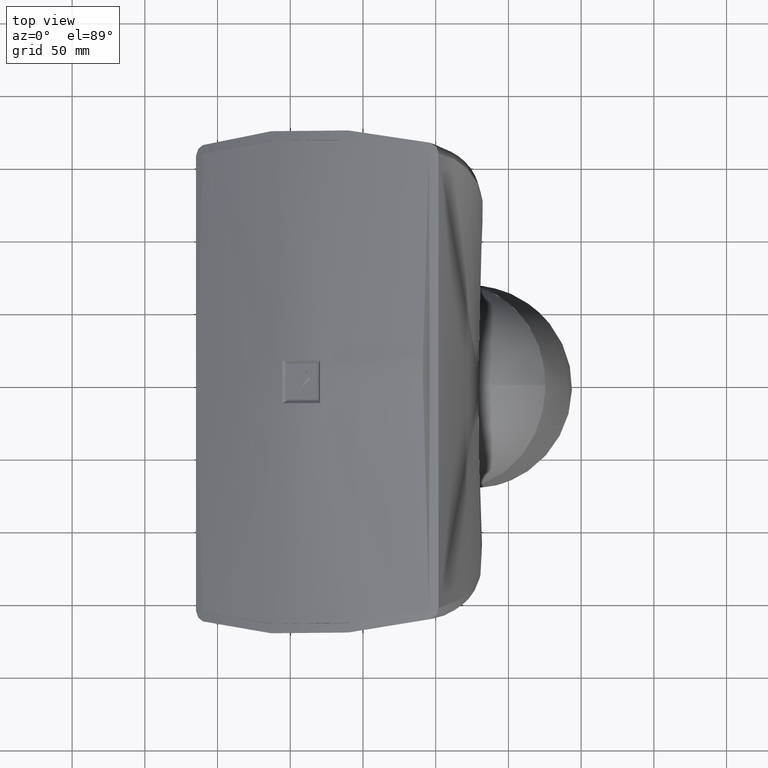
[diagram: clean part render]
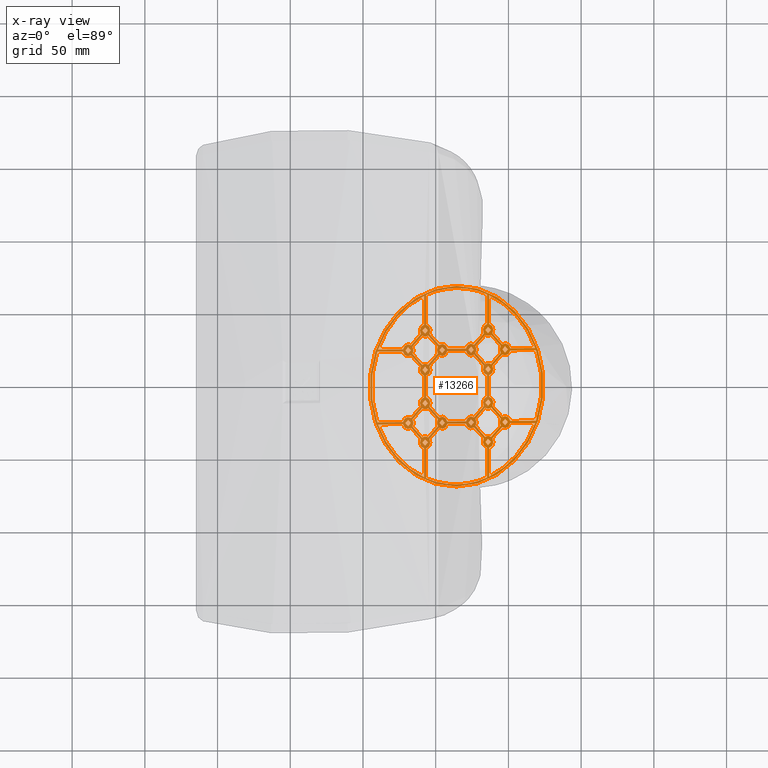
[diagram: x-ray — body ghosted, one internal face saturated and labeled with its STEP entity id]
A machine part, top view, then the same camera in x-ray: the body is ghosted and one INTERNAL B-rep face — a face not visible from any outside direction — is saturated and labeled: STEP entity #13266.
In plain terms, the highlighted planar face has unit normal (0.5, 0, -0.866).
Its self-contained STEP definition (entity closure, byte-faithful):
#1002=FACE_BOUND('',#4945,.T.);
#1003=FACE_BOUND('',#4946,.T.);
#1004=FACE_BOUND('',#4947,.T.);
#1005=FACE_BOUND('',#4948,.T.);
#1006=FACE_BOUND('',#4949,.T.);
#1007=FACE_BOUND('',#4950,.T.);
#1008=FACE_BOUND('',#4951,.T.);
#1009=FACE_BOUND('',#4952,.T.);
#1010=FACE_BOUND('',#4953,.T.);
#1011=FACE_BOUND('',#4954,.T.);
#1012=FACE_BOUND('',#4955,.T.);
#1013=FACE_BOUND('',#4956,.T.);
#1014=FACE_BOUND('',#4957,.T.);
#1015=FACE_BOUND('',#4958,.T.);
#1016=FACE_BOUND('',#4959,.T.);
#1017=FACE_BOUND('',#4960,.T.);
#1018=FACE_BOUND('',#4961,.T.);
#1019=FACE_BOUND('',#4962,.T.);
#1020=FACE_BOUND('',#4963,.T.);
#1021=FACE_BOUND('',#4964,.T.);
#1022=FACE_BOUND('',#4965,.T.);
#1023=FACE_BOUND('',#4966,.T.);
#1024=FACE_BOUND('',#4967,.T.);
#1025=FACE_BOUND('',#4968,.T.);
#1026=FACE_BOUND('',#4969,.T.);
#1027=FACE_BOUND('',#4970,.T.);
#1028=FACE_BOUND('',#4971,.T.);
#1029=FACE_BOUND('',#4972,.T.);
#1030=FACE_BOUND('',#4973,.T.);
#2217=LINE('',#29278,#3303);
#2218=LINE('',#29287,#3304);
#2219=LINE('',#29295,#3305);
#2220=LINE('',#29303,#3306);
#2239=LINE('',#29643,#3325);
#2240=LINE('',#29650,#3326);
#2241=LINE('',#29656,#3327);
#2242=LINE('',#29662,#3328);
#2243=LINE('',#29668,#3329);
#2245=LINE('',#29677,#3331);
#2246=LINE('',#29683,#3332);
#2248=LINE('',#29692,#3334);
#2249=LINE('',#29698,#3335);
#2251=LINE('',#29707,#3337);
#2253=LINE('',#29716,#3339);
#2255=LINE('',#29725,#3341);
#2256=LINE('',#29731,#3342);
#2258=LINE('',#29740,#3344);
#2260=LINE('',#29751,#3346);
#2261=LINE('',#29757,#3347);
#2262=LINE('',#29779,#3348);
#2264=LINE('',#29786,#3350);
#2266=LINE('',#29804,#3352);
#2267=LINE('',#29820,#3353);
#2269=LINE('',#29829,#3355);
#2271=LINE('',#29838,#3357);
#2273=LINE('',#29847,#3359);
#2275=LINE('',#29856,#3361);
#2277=LINE('',#29865,#3363);
#2279=LINE('',#29874,#3365);
#2281=LINE('',#29883,#3367);
#2283=LINE('',#29892,#3369);
#2285=LINE('',#29901,#3371);
#2287=LINE('',#29910,#3373);
#2289=LINE('',#29919,#3375);
#2291=LINE('',#29941,#3377);
#2292=LINE('',#29956,#3378);
#2294=LINE('',#29962,#3380);
#2296=LINE('',#29985,#3382);
#2298=LINE('',#29993,#3384);
#2300=LINE('',#30006,#3386);
#2302=LINE('',#30012,#3388);
#2304=LINE('',#30021,#3390);
#2307=LINE('',#30030,#3393);
#2308=LINE('',#30036,#3394);
#2310=LINE('',#30045,#3396);
#2311=LINE('',#30051,#3397);
#2312=LINE('',#30057,#3398);
#2314=LINE('',#30066,#3400);
#2315=LINE('',#30072,#3401);
#2317=LINE('',#30081,#3403);
#2319=LINE('',#30090,#3405);
#2321=LINE('',#30099,#3407);
#2322=LINE('',#30105,#3408);
#2323=LINE('',#30111,#3409);
#2327=LINE('',#30120,#3413);
#3303=VECTOR('',#16614,10.);
#3304=VECTOR('',#16627,10.);
#3305=VECTOR('',#16638,10.);
#3306=VECTOR('',#16649,10.);
#3325=VECTOR('',#16734,10.);
#3326=VECTOR('',#16743,10.);
#3327=VECTOR('',#16750,10.);
#3328=VECTOR('',#16757,10.);
#3329=VECTOR('',#16764,10.);
#3331=VECTOR('',#16772,10.);
#3332=VECTOR('',#16779,10.);
#3334=VECTOR('',#16787,10.);
#3335=VECTOR('',#16794,10.);
#3337=VECTOR('',#16802,9.99999999999999);
#3339=VECTOR('',#16810,10.);
#3341=VECTOR('',#16818,10.);
#3342=VECTOR('',#16825,10.);
#3344=VECTOR('',#16833,10.);
#3346=VECTOR('',#16839,10.);
#3347=VECTOR('',#16846,10.);
#3348=VECTOR('',#16849,10.);
#3350=VECTOR('',#16857,10.);
#3352=VECTOR('',#16863,10.);
#3353=VECTOR('',#16866,10.);
#3355=VECTOR('',#16874,10.);
#3357=VECTOR('',#16882,10.);
#3359=VECTOR('',#16890,10.);
#3361=VECTOR('',#16898,10.);
#3363=VECTOR('',#16906,10.);
#3365=VECTOR('',#16914,10.);
#3367=VECTOR('',#16922,10.);
#3369=VECTOR('',#16930,10.);
#3371=VECTOR('',#16938,10.);
#3373=VECTOR('',#16946,10.);
#3375=VECTOR('',#16954,10.);
#3377=VECTOR('',#16962,10.);
#3378=VECTOR('',#16965,10.);
#3380=VECTOR('',#16971,10.);
#3382=VECTOR('',#16979,10.);
#3384=VECTOR('',#16985,10.);
#3386=VECTOR('',#16989,10.);
#3388=VECTOR('',#16995,10.);
#3390=VECTOR('',#17003,10.);
#3393=VECTOR('',#17010,10.);
#3394=VECTOR('',#17017,10.);
#3396=VECTOR('',#17025,10.);
#3397=VECTOR('',#17032,10.);
#3398=VECTOR('',#17039,10.);
#3400=VECTOR('',#17047,10.);
#3401=VECTOR('',#17054,10.);
#3403=VECTOR('',#17062,10.);
#3405=VECTOR('',#17070,10.);
#3407=VECTOR('',#17078,10.);
#3408=VECTOR('',#17085,10.);
#3409=VECTOR('',#17092,10.);
#3413=VECTOR('',#17098,10.);
#4129=FACE_OUTER_BOUND('',#4944,.T.);
#4944=EDGE_LOOP('',(#11929));
#4945=EDGE_LOOP('',(#11930,#11931,#11932,#11933,#11934,#11935,#11936,#11937,
#11938,#11939));
#4946=EDGE_LOOP('',(#11940,#11941,#11942,#11943,#11944,#11945,#11946,#11947,
#11948,#11949,#11950,#11951,#11952,#11953,#11954,#11955));
#4947=EDGE_LOOP('',(#11956,#11957,#11958,#11959,#11960,#11961));
#4948=EDGE_LOOP('',(#11962,#11963,#11964,#11965,#11966,#11967));
#4949=EDGE_LOOP('',(#11968,#11969,#11970,#11971,#11972,#11973,#11974,#11975));
#4950=EDGE_LOOP('',(#11976,#11977,#11978,#11979,#11980,#11981,#11982,#11983));
#4951=EDGE_LOOP('',(#11984));
#4952=EDGE_LOOP('',(#11985,#11986,#11987,#11988,#11989,#11990,#11991,#11992));
#4953=EDGE_LOOP('',(#11993,#11994,#11995,#11996,#11997,#11998,#11999,#12000,
#12001,#12002));
#4954=EDGE_LOOP('',(#12003,#12004,#12005,#12006,#12007,#12008,#12009,#12010,
#12011,#12012,#12013));
#4955=EDGE_LOOP('',(#12014));
#4956=EDGE_LOOP('',(#12015));
#4957=EDGE_LOOP('',(#12016));
#4958=EDGE_LOOP('',(#12017));
#4959=EDGE_LOOP('',(#12018));
#4960=EDGE_LOOP('',(#12019,#12020,#12021,#12022,#12023,#12024));
#4961=EDGE_LOOP('',(#12025,#12026,#12027,#12028,#12029,#12030,#12031,#12032,
#12033,#12034,#12035));
#4962=EDGE_LOOP('',(#12036));
#4963=EDGE_LOOP('',(#12037));
#4964=EDGE_LOOP('',(#12038));
#4965=EDGE_LOOP('',(#12039));
#4966=EDGE_LOOP('',(#12040));
#4967=EDGE_LOOP('',(#12041));
#4968=EDGE_LOOP('',(#12042));
#4969=EDGE_LOOP('',(#12043));
#4970=EDGE_LOOP('',(#12044));
#4971=EDGE_LOOP('',(#12045,#12046,#12047,#12048,#12049,#12050,#12051,#12052));
#4972=EDGE_LOOP('',(#12053));
#4973=EDGE_LOOP('',(#12054,#12055,#12056,#12057,#12058,#12059));
#5090=CIRCLE('',#13829,69.);
#5128=CIRCLE('',#14018,4.15);
#5129=CIRCLE('',#14023,4.15);
#5130=CIRCLE('',#14028,4.15);
#5131=CIRCLE('',#14033,4.15);
#5142=CIRCLE('',#14055,67.5);
#5144=CIRCLE('',#14204,4.15);
#5145=CIRCLE('',#14207,4.15);
#5146=CIRCLE('',#14210,4.15);
#5147=CIRCLE('',#14212,4.15);
#5148=CIRCLE('',#14216,4.15);
#5149=CIRCLE('',#14219,4.15);
#5150=CIRCLE('',#14221,4.15);
#5151=CIRCLE('',#14224,4.15);
#5152=CIRCLE('',#14228,4.15);
#5153=CIRCLE('',#14230,4.15);
#5154=CIRCLE('',#14233,67.5);
#5157=CIRCLE('',#14237,67.5);
#5158=CIRCLE('',#14239,67.5);
#5160=CIRCLE('',#14242,67.5);
#5161=CIRCLE('',#14244,4.15);
#5162=CIRCLE('',#14247,4.15);
#5163=CIRCLE('',#14250,4.15);
#5164=CIRCLE('',#14252,4.15);
#5165=CIRCLE('',#14256,4.15);
#5166=CIRCLE('',#14258,4.15);
#5167=CIRCLE('',#14261,4.15);
#5168=CIRCLE('',#14264,4.15);
#5169=CIRCLE('',#14266,4.15);
#5170=CIRCLE('',#14269,4.15);
#5171=CIRCLE('',#14271,4.15);
#5172=CIRCLE('',#14275,4.15);
#5173=CIRCLE('',#14277,4.15);
#5174=CIRCLE('',#14279,4.15);
#5175=CIRCLE('',#14282,4.15);
#5176=CIRCLE('',#14284,4.15);
#5177=CIRCLE('',#14286,4.15);
#5178=CIRCLE('',#14289,4.15);
#5179=CIRCLE('',#14291,4.15);
#5180=CIRCLE('',#14295,4.15);
#5181=CIRCLE('',#14297,4.15);
#5182=CIRCLE('',#14300,4.15);
#5183=CIRCLE('',#14302,4.15);
#5184=CIRCLE('',#14305,4.15);
#5185=CIRCLE('',#14307,4.15);
#5186=CIRCLE('',#14309,4.15);
#5187=CIRCLE('',#14311,4.15);
#5188=CIRCLE('',#14315,4.15);
#5189=CIRCLE('',#14317,4.15);
#5190=CIRCLE('',#14319,67.5);
#5191=CIRCLE('',#14321,67.5);
#5192=CIRCLE('',#14325,67.5);
#5193=CIRCLE('',#14327,67.5);
#5194=CIRCLE('',#14330,67.5);
#5195=CIRCLE('',#14344,4.15);
#5196=CIRCLE('',#14346,4.15);
#5197=CIRCLE('',#14348,4.15);
#5198=CIRCLE('',#14350,2.15);
#5199=CIRCLE('',#14352,4.15);
#5200=CIRCLE('',#14353,2.15);
#5201=CIRCLE('',#14354,2.15);
#5202=CIRCLE('',#14355,2.15);
#5203=CIRCLE('',#14356,2.15);
#5204=CIRCLE('',#14357,2.15);
#5205=CIRCLE('',#14358,2.15);
#5206=CIRCLE('',#14359,4.15);
#5207=CIRCLE('',#14360,2.15);
#5208=CIRCLE('',#14361,2.15);
#5209=CIRCLE('',#14362,2.15);
#5210=CIRCLE('',#14363,2.15);
#5211=CIRCLE('',#14364,2.15);
#5212=CIRCLE('',#14365,2.15);
#5213=CIRCLE('',#14366,2.15);
#5214=CIRCLE('',#14367,2.15);
#5215=CIRCLE('',#14368,2.15);
#6007=VERTEX_POINT('',#25695);
#6257=VERTEX_POINT('',#29275);
#6258=VERTEX_POINT('',#29277);
#6259=VERTEX_POINT('',#29281);
#6260=VERTEX_POINT('',#29285);
#6261=VERTEX_POINT('',#29289);
#6262=VERTEX_POINT('',#29293);
#6263=VERTEX_POINT('',#29297);
#6264=VERTEX_POINT('',#29301);
#6265=VERTEX_POINT('',#29305);
#6281=VERTEX_POINT('',#29598);
#6282=VERTEX_POINT('',#29613);
#6285=VERTEX_POINT('',#29641);
#6286=VERTEX_POINT('',#29647);
#6287=VERTEX_POINT('',#29649);
#6288=VERTEX_POINT('',#29653);
#6289=VERTEX_POINT('',#29655);
#6290=VERTEX_POINT('',#29659);
#6291=VERTEX_POINT('',#29661);
#6292=VERTEX_POINT('',#29665);
#6293=VERTEX_POINT('',#29667);
#6296=VERTEX_POINT('',#29674);
#6297=VERTEX_POINT('',#29676);
#6298=VERTEX_POINT('',#29680);
#6299=VERTEX_POINT('',#29682);
#6302=VERTEX_POINT('',#29689);
#6303=VERTEX_POINT('',#29691);
#6304=VERTEX_POINT('',#29695);
#6305=VERTEX_POINT('',#29697);
#6308=VERTEX_POINT('',#29704);
#6309=VERTEX_POINT('',#29706);
#6312=VERTEX_POINT('',#29713);
#6313=VERTEX_POINT('',#29715);
#6316=VERTEX_POINT('',#29722);
#6317=VERTEX_POINT('',#29724);
#6318=VERTEX_POINT('',#29728);
#6319=VERTEX_POINT('',#29730);
#6322=VERTEX_POINT('',#29737);
#6323=VERTEX_POINT('',#29739);
#6326=VERTEX_POINT('',#29746);
#6327=VERTEX_POINT('',#29750);
#6328=VERTEX_POINT('',#29754);
#6329=VERTEX_POINT('',#29756);
#6330=VERTEX_POINT('',#29762);
#6332=VERTEX_POINT('',#29778);
#6334=VERTEX_POINT('',#29784);
#6336=VERTEX_POINT('',#29789);
#6338=VERTEX_POINT('',#29802);
#6339=VERTEX_POINT('',#29806);
#6340=VERTEX_POINT('',#29819);
#6343=VERTEX_POINT('',#29826);
#6344=VERTEX_POINT('',#29828);
#6347=VERTEX_POINT('',#29835);
#6348=VERTEX_POINT('',#29837);
#6351=VERTEX_POINT('',#29844);
#6352=VERTEX_POINT('',#29846);
#6355=VERTEX_POINT('',#29853);
#6356=VERTEX_POINT('',#29855);
#6359=VERTEX_POINT('',#29862);
#6360=VERTEX_POINT('',#29864);
#6363=VERTEX_POINT('',#29871);
#6364=VERTEX_POINT('',#29873);
#6367=VERTEX_POINT('',#29880);
#6368=VERTEX_POINT('',#29882);
#6371=VERTEX_POINT('',#29889);
#6372=VERTEX_POINT('',#29891);
#6375=VERTEX_POINT('',#29898);
#6376=VERTEX_POINT('',#29900);
#6379=VERTEX_POINT('',#29907);
#6380=VERTEX_POINT('',#29909);
#6383=VERTEX_POINT('',#29916);
#6384=VERTEX_POINT('',#29918);
#6386=VERTEX_POINT('',#29923);
#6388=VERTEX_POINT('',#29939);
#6389=VERTEX_POINT('',#29943);
#6391=VERTEX_POINT('',#29955);
#6393=VERTEX_POINT('',#29961);
#6395=VERTEX_POINT('',#29966);
#6397=VERTEX_POINT('',#29983);
#6400=VERTEX_POINT('',#29990);
#6401=VERTEX_POINT('',#29992);
#6404=VERTEX_POINT('',#30001);
#6405=VERTEX_POINT('',#30005);
#6406=VERTEX_POINT('',#30009);
#6407=VERTEX_POINT('',#30011);
#6410=VERTEX_POINT('',#30018);
#6411=VERTEX_POINT('',#30020);
#6414=VERTEX_POINT('',#30027);
#6415=VERTEX_POINT('',#30029);
#6416=VERTEX_POINT('',#30033);
#6417=VERTEX_POINT('',#30035);
#6420=VERTEX_POINT('',#30042);
#6421=VERTEX_POINT('',#30044);
#6422=VERTEX_POINT('',#30048);
#6423=VERTEX_POINT('',#30050);
#6424=VERTEX_POINT('',#30054);
#6425=VERTEX_POINT('',#30056);
#6428=VERTEX_POINT('',#30063);
#6429=VERTEX_POINT('',#30065);
#6430=VERTEX_POINT('',#30069);
#6431=VERTEX_POINT('',#30071);
#6434=VERTEX_POINT('',#30078);
#6435=VERTEX_POINT('',#30080);
#6438=VERTEX_POINT('',#30087);
#6439=VERTEX_POINT('',#30089);
#6442=VERTEX_POINT('',#30096);
#6443=VERTEX_POINT('',#30098);
#6444=VERTEX_POINT('',#30102);
#6445=VERTEX_POINT('',#30104);
#6446=VERTEX_POINT('',#30108);
#6447=VERTEX_POINT('',#30110);
#6450=VERTEX_POINT('',#30117);
#6451=VERTEX_POINT('',#30119);
#6452=VERTEX_POINT('',#30152);
#6454=VERTEX_POINT('',#30168);
#6455=VERTEX_POINT('',#30286);
#6456=VERTEX_POINT('',#30291);
#6457=VERTEX_POINT('',#30293);
#6458=VERTEX_POINT('',#30295);
#6459=VERTEX_POINT('',#30297);
#6460=VERTEX_POINT('',#30299);
#6461=VERTEX_POINT('',#30301);
#6462=VERTEX_POINT('',#30304);
#6463=VERTEX_POINT('',#30306);
#6464=VERTEX_POINT('',#30308);
#6465=VERTEX_POINT('',#30310);
#6466=VERTEX_POINT('',#30312);
#6467=VERTEX_POINT('',#30314);
#6468=VERTEX_POINT('',#30316);
#6469=VERTEX_POINT('',#30318);
#6470=VERTEX_POINT('',#30320);
#7638=EDGE_CURVE('',#6007,#6007,#5090,.T.);
#8002=EDGE_CURVE('',#6258,#6257,#2217,.T.);
#8005=EDGE_CURVE('',#6259,#6257,#5128,.T.);
#8007=EDGE_CURVE('',#6259,#6260,#2218,.T.);
#8009=EDGE_CURVE('',#6261,#6260,#5129,.T.);
#8011=EDGE_CURVE('',#6261,#6262,#2219,.T.);
#8013=EDGE_CURVE('',#6263,#6262,#5130,.T.);
#8015=EDGE_CURVE('',#6263,#6264,#2220,.T.);
#8017=EDGE_CURVE('',#6265,#6264,#5131,.T.);
#8049=EDGE_CURVE('',#6281,#6282,#5142,.T.);
#8058=EDGE_CURVE('',#6265,#6285,#2239,.T.);
#8060=EDGE_CURVE('',#6287,#6286,#2240,.T.);
#8063=EDGE_CURVE('',#6289,#6288,#2241,.T.);
#8066=EDGE_CURVE('',#6291,#6290,#2242,.T.);
#8069=EDGE_CURVE('',#6293,#6292,#2243,.T.);
#8073=EDGE_CURVE('',#6297,#6296,#2245,.T.);
#8076=EDGE_CURVE('',#6299,#6298,#2246,.T.);
#8080=EDGE_CURVE('',#6303,#6302,#2248,.T.);
#8083=EDGE_CURVE('',#6305,#6304,#2249,.T.);
#8087=EDGE_CURVE('',#6309,#6308,#2251,.T.);
#8091=EDGE_CURVE('',#6313,#6312,#2253,.T.);
#8095=EDGE_CURVE('',#6317,#6316,#2255,.T.);
#8098=EDGE_CURVE('',#6319,#6318,#2256,.T.);
#8102=EDGE_CURVE('',#6323,#6322,#2258,.T.);
#8106=EDGE_CURVE('',#6327,#6326,#2260,.T.);
#8109=EDGE_CURVE('',#6329,#6328,#2261,.T.);
#8112=EDGE_CURVE('',#6332,#6330,#2262,.T.);
#8116=EDGE_CURVE('',#6281,#6334,#2264,.T.);
#8120=EDGE_CURVE('',#6336,#6338,#2266,.T.);
#8122=EDGE_CURVE('',#6340,#6339,#2267,.T.);
#8126=EDGE_CURVE('',#6344,#6343,#2269,.T.);
#8130=EDGE_CURVE('',#6348,#6347,#2271,.T.);
#8134=EDGE_CURVE('',#6352,#6351,#2273,.T.);
#8138=EDGE_CURVE('',#6356,#6355,#2275,.T.);
#8142=EDGE_CURVE('',#6360,#6359,#2277,.T.);
#8146=EDGE_CURVE('',#6364,#6363,#2279,.T.);
#8150=EDGE_CURVE('',#6368,#6367,#2281,.T.);
#8154=EDGE_CURVE('',#6372,#6371,#2283,.T.);
#8158=EDGE_CURVE('',#6376,#6375,#2285,.T.);
#8162=EDGE_CURVE('',#6380,#6379,#2287,.T.);
#8166=EDGE_CURVE('',#6384,#6383,#2289,.T.);
#8171=EDGE_CURVE('',#6386,#6388,#2291,.T.);
#8173=EDGE_CURVE('',#6391,#6389,#2292,.T.);
#8176=EDGE_CURVE('',#6393,#6282,#2294,.T.);
#8181=EDGE_CURVE('',#6395,#6397,#2296,.T.);
#8184=EDGE_CURVE('',#6401,#6400,#2298,.T.);
#8188=EDGE_CURVE('',#6405,#6404,#2300,.T.);
#8191=EDGE_CURVE('',#6407,#6406,#2302,.T.);
#8195=EDGE_CURVE('',#6411,#6410,#2304,.T.);
#8199=EDGE_CURVE('',#6415,#6414,#2307,.T.);
#8202=EDGE_CURVE('',#6417,#6416,#2308,.T.);
#8206=EDGE_CURVE('',#6421,#6420,#2310,.T.);
#8209=EDGE_CURVE('',#6423,#6422,#2311,.T.);
#8212=EDGE_CURVE('',#6425,#6424,#2312,.T.);
#8216=EDGE_CURVE('',#6429,#6428,#2314,.T.);
#8219=EDGE_CURVE('',#6431,#6430,#2315,.T.);
#8223=EDGE_CURVE('',#6435,#6434,#2317,.T.);
#8227=EDGE_CURVE('',#6439,#6438,#2319,.T.);
#8231=EDGE_CURVE('',#6443,#6442,#2321,.T.);
#8234=EDGE_CURVE('',#6445,#6444,#2322,.T.);
#8237=EDGE_CURVE('',#6447,#6446,#2323,.T.);
#8241=EDGE_CURVE('',#6451,#6450,#2327,.T.);
#8243=EDGE_CURVE('',#6317,#6338,#5144,.T.);
#8245=EDGE_CURVE('',#6303,#6312,#5145,.T.);
#8247=EDGE_CURVE('',#6340,#6298,#5146,.T.);
#8248=EDGE_CURVE('',#6352,#6363,#5147,.T.);
#8251=EDGE_CURVE('',#6368,#6343,#5148,.T.);
#8253=EDGE_CURVE('',#6372,#6347,#5149,.T.);
#8254=EDGE_CURVE('',#6344,#6375,#5150,.T.);
#8256=EDGE_CURVE('',#6376,#6388,#5151,.T.);
#8259=EDGE_CURVE('',#6391,#6359,#5152,.T.);
#8260=EDGE_CURVE('',#6356,#6371,#5153,.T.);
#8262=EDGE_CURVE('',#6386,#6452,#5154,.T.);
#8266=EDGE_CURVE('',#6395,#6389,#5157,.T.);
#8268=EDGE_CURVE('',#6454,#6339,#5158,.T.);
#8270=EDGE_CURVE('',#6336,#6330,#5160,.T.);
#8271=EDGE_CURVE('',#6360,#6397,#5161,.T.);
#8273=EDGE_CURVE('',#6323,#6355,#5162,.T.);
#8275=EDGE_CURVE('',#6393,#6318,#5163,.T.);
#8276=EDGE_CURVE('',#6380,#6400,#5164,.T.);
#8279=EDGE_CURVE('',#6405,#6367,#5165,.T.);
#8280=EDGE_CURVE('',#6364,#6383,#5166,.T.);
#8282=EDGE_CURVE('',#6417,#6334,#5167,.T.);
#8284=EDGE_CURVE('',#6332,#6316,#5168,.T.);
#8285=EDGE_CURVE('',#6313,#6414,#5169,.T.);
#8287=EDGE_CURVE('',#6423,#6288,#5170,.T.);
#8288=EDGE_CURVE('',#6309,#6420,#5171,.T.);
#8291=EDGE_CURVE('',#6421,#6296,#5172,.T.);
#8292=EDGE_CURVE('',#6258,#6422,#5173,.T.);
#8293=EDGE_CURVE('',#6293,#6290,#5174,.T.);
#8295=EDGE_CURVE('',#6429,#6302,#5175,.T.);
#8296=EDGE_CURVE('',#6289,#6424,#5176,.T.);
#8297=EDGE_CURVE('',#6299,#6286,#5177,.T.);
#8299=EDGE_CURVE('',#6435,#6351,#5178,.T.);
#8300=EDGE_CURVE('',#6327,#6438,#5179,.T.);
#8303=EDGE_CURVE('',#6443,#6308,#5180,.T.);
#8304=EDGE_CURVE('',#6305,#6328,#5181,.T.);
#8306=EDGE_CURVE('',#6439,#6410,#5182,.T.);
#8307=EDGE_CURVE('',#6297,#6442,#5183,.T.);
#8309=EDGE_CURVE('',#6407,#6292,#5184,.T.);
#8310=EDGE_CURVE('',#6425,#6285,#5185,.T.);
#8311=EDGE_CURVE('',#6445,#6416,#5186,.T.);
#8312=EDGE_CURVE('',#6415,#6428,#5187,.T.);
#8315=EDGE_CURVE('',#6348,#6322,#5188,.T.);
#8316=EDGE_CURVE('',#6319,#6444,#5189,.T.);
#8317=EDGE_CURVE('',#6447,#6406,#5190,.T.);
#8318=EDGE_CURVE('',#6401,#6450,#5191,.T.);
#8321=EDGE_CURVE('',#6452,#6404,#5192,.T.);
#8322=EDGE_CURVE('',#6329,#6454,#5193,.T.);
#8324=EDGE_CURVE('',#6411,#6326,#5194,.T.);
#8327=EDGE_CURVE('',#6431,#6446,#5195,.T.);
#8328=EDGE_CURVE('',#6384,#6434,#5196,.T.);
#8329=EDGE_CURVE('',#6451,#6379,#5197,.T.);
#8330=EDGE_CURVE('',#6455,#6455,#5198,.T.);
#8332=EDGE_CURVE('',#6291,#6430,#5199,.T.);
#8333=EDGE_CURVE('',#6456,#6456,#5200,.T.);
#8334=EDGE_CURVE('',#6457,#6457,#5201,.T.);
#8335=EDGE_CURVE('',#6458,#6458,#5202,.T.);
#8336=EDGE_CURVE('',#6459,#6459,#5203,.T.);
#8337=EDGE_CURVE('',#6460,#6460,#5204,.T.);
#8338=EDGE_CURVE('',#6461,#6461,#5205,.T.);
#8339=EDGE_CURVE('',#6287,#6304,#5206,.T.);
#8340=EDGE_CURVE('',#6462,#6462,#5207,.T.);
#8341=EDGE_CURVE('',#6463,#6463,#5208,.T.);
#8342=EDGE_CURVE('',#6464,#6464,#5209,.T.);
#8343=EDGE_CURVE('',#6465,#6465,#5210,.T.);
#8344=EDGE_CURVE('',#6466,#6466,#5211,.T.);
#8345=EDGE_CURVE('',#6467,#6467,#5212,.T.);
#8346=EDGE_CURVE('',#6468,#6468,#5213,.T.);
#8347=EDGE_CURVE('',#6469,#6469,#5214,.T.);
#8348=EDGE_CURVE('',#6470,#6470,#5215,.T.);
#11929=ORIENTED_EDGE('',*,*,#7638,.T.);
#11930=ORIENTED_EDGE('',*,*,#8327,.F.);
#11931=ORIENTED_EDGE('',*,*,#8219,.T.);
#11932=ORIENTED_EDGE('',*,*,#8332,.F.);
#11933=ORIENTED_EDGE('',*,*,#8066,.T.);
#11934=ORIENTED_EDGE('',*,*,#8293,.F.);
#11935=ORIENTED_EDGE('',*,*,#8069,.T.);
#11936=ORIENTED_EDGE('',*,*,#8309,.F.);
#11937=ORIENTED_EDGE('',*,*,#8191,.T.);
#11938=ORIENTED_EDGE('',*,*,#8317,.F.);
#11939=ORIENTED_EDGE('',*,*,#8237,.T.);
#11940=ORIENTED_EDGE('',*,*,#8310,.F.);
#11941=ORIENTED_EDGE('',*,*,#8212,.T.);
#11942=ORIENTED_EDGE('',*,*,#8296,.F.);
#11943=ORIENTED_EDGE('',*,*,#8063,.T.);
#11944=ORIENTED_EDGE('',*,*,#8287,.F.);
#11945=ORIENTED_EDGE('',*,*,#8209,.T.);
#11946=ORIENTED_EDGE('',*,*,#8292,.F.);
#11947=ORIENTED_EDGE('',*,*,#8002,.T.);
#11948=ORIENTED_EDGE('',*,*,#8005,.F.);
#11949=ORIENTED_EDGE('',*,*,#8007,.T.);
#11950=ORIENTED_EDGE('',*,*,#8009,.F.);
#11951=ORIENTED_EDGE('',*,*,#8011,.T.);
#11952=ORIENTED_EDGE('',*,*,#8013,.F.);
#11953=ORIENTED_EDGE('',*,*,#8015,.T.);
#11954=ORIENTED_EDGE('',*,*,#8017,.F.);
#11955=ORIENTED_EDGE('',*,*,#8058,.T.);
#11956=ORIENTED_EDGE('',*,*,#8300,.F.);
#11957=ORIENTED_EDGE('',*,*,#8106,.T.);
#11958=ORIENTED_EDGE('',*,*,#8324,.F.);
#11959=ORIENTED_EDGE('',*,*,#8195,.T.);
#11960=ORIENTED_EDGE('',*,*,#8306,.F.);
#11961=ORIENTED_EDGE('',*,*,#8227,.T.);
#11962=ORIENTED_EDGE('',*,*,#8241,.T.);
#11963=ORIENTED_EDGE('',*,*,#8318,.F.);
#11964=ORIENTED_EDGE('',*,*,#8184,.T.);
#11965=ORIENTED_EDGE('',*,*,#8276,.F.);
#11966=ORIENTED_EDGE('',*,*,#8162,.T.);
#11967=ORIENTED_EDGE('',*,*,#8329,.F.);
#11968=ORIENTED_EDGE('',*,*,#8312,.F.);
#11969=ORIENTED_EDGE('',*,*,#8199,.T.);
#11970=ORIENTED_EDGE('',*,*,#8285,.F.);
#11971=ORIENTED_EDGE('',*,*,#8091,.T.);
#11972=ORIENTED_EDGE('',*,*,#8245,.F.);
#11973=ORIENTED_EDGE('',*,*,#8080,.T.);
#11974=ORIENTED_EDGE('',*,*,#8295,.F.);
#11975=ORIENTED_EDGE('',*,*,#8216,.T.);
#11976=ORIENTED_EDGE('',*,*,#8231,.T.);
#11977=ORIENTED_EDGE('',*,*,#8307,.F.);
#11978=ORIENTED_EDGE('',*,*,#8073,.T.);
#11979=ORIENTED_EDGE('',*,*,#8291,.F.);
#11980=ORIENTED_EDGE('',*,*,#8206,.T.);
#11981=ORIENTED_EDGE('',*,*,#8288,.F.);
#11982=ORIENTED_EDGE('',*,*,#8087,.T.);
#11983=ORIENTED_EDGE('',*,*,#8303,.F.);
#11984=ORIENTED_EDGE('',*,*,#8333,.T.);
#11985=ORIENTED_EDGE('',*,*,#8223,.T.);
#11986=ORIENTED_EDGE('',*,*,#8328,.F.);
#11987=ORIENTED_EDGE('',*,*,#8166,.T.);
#11988=ORIENTED_EDGE('',*,*,#8280,.F.);
#11989=ORIENTED_EDGE('',*,*,#8146,.T.);
#11990=ORIENTED_EDGE('',*,*,#8248,.F.);
#11991=ORIENTED_EDGE('',*,*,#8134,.T.);
#11992=ORIENTED_EDGE('',*,*,#8299,.F.);
#11993=ORIENTED_EDGE('',*,*,#8234,.T.);
#11994=ORIENTED_EDGE('',*,*,#8316,.F.);
#11995=ORIENTED_EDGE('',*,*,#8098,.T.);
#11996=ORIENTED_EDGE('',*,*,#8275,.F.);
#11997=ORIENTED_EDGE('',*,*,#8176,.T.);
#11998=ORIENTED_EDGE('',*,*,#8049,.F.);
#11999=ORIENTED_EDGE('',*,*,#8116,.T.);
#12000=ORIENTED_EDGE('',*,*,#8282,.F.);
#12001=ORIENTED_EDGE('',*,*,#8202,.T.);
#12002=ORIENTED_EDGE('',*,*,#8311,.F.);
#12003=ORIENTED_EDGE('',*,*,#8188,.T.);
#12004=ORIENTED_EDGE('',*,*,#8321,.F.);
#12005=ORIENTED_EDGE('',*,*,#8262,.F.);
#12006=ORIENTED_EDGE('',*,*,#8171,.T.);
#12007=ORIENTED_EDGE('',*,*,#8256,.F.);
#12008=ORIENTED_EDGE('',*,*,#8158,.T.);
#12009=ORIENTED_EDGE('',*,*,#8254,.F.);
#12010=ORIENTED_EDGE('',*,*,#8126,.T.);
#12011=ORIENTED_EDGE('',*,*,#8251,.F.);
#12012=ORIENTED_EDGE('',*,*,#8150,.T.);
#12013=ORIENTED_EDGE('',*,*,#8279,.F.);
#12014=ORIENTED_EDGE('',*,*,#8334,.T.);
#12015=ORIENTED_EDGE('',*,*,#8335,.T.);
#12016=ORIENTED_EDGE('',*,*,#8336,.T.);
#12017=ORIENTED_EDGE('',*,*,#8337,.T.);
#12018=ORIENTED_EDGE('',*,*,#8338,.T.);
#12019=ORIENTED_EDGE('',*,*,#8120,.T.);
#12020=ORIENTED_EDGE('',*,*,#8243,.F.);
#12021=ORIENTED_EDGE('',*,*,#8095,.T.);
#12022=ORIENTED_EDGE('',*,*,#8284,.F.);
#12023=ORIENTED_EDGE('',*,*,#8112,.T.);
#12024=ORIENTED_EDGE('',*,*,#8270,.F.);
#12025=ORIENTED_EDGE('',*,*,#8268,.F.);
#12026=ORIENTED_EDGE('',*,*,#8322,.F.);
#12027=ORIENTED_EDGE('',*,*,#8109,.T.);
#12028=ORIENTED_EDGE('',*,*,#8304,.F.);
#12029=ORIENTED_EDGE('',*,*,#8083,.T.);
#12030=ORIENTED_EDGE('',*,*,#8339,.F.);
#12031=ORIENTED_EDGE('',*,*,#8060,.T.);
#12032=ORIENTED_EDGE('',*,*,#8297,.F.);
#12033=ORIENTED_EDGE('',*,*,#8076,.T.);
#12034=ORIENTED_EDGE('',*,*,#8247,.F.);
#12035=ORIENTED_EDGE('',*,*,#8122,.T.);
#12036=ORIENTED_EDGE('',*,*,#8340,.T.);
#12037=ORIENTED_EDGE('',*,*,#8341,.T.);
#12038=ORIENTED_EDGE('',*,*,#8342,.T.);
#12039=ORIENTED_EDGE('',*,*,#8343,.T.);
#12040=ORIENTED_EDGE('',*,*,#8344,.T.);
#12041=ORIENTED_EDGE('',*,*,#8345,.T.);
#12042=ORIENTED_EDGE('',*,*,#8346,.T.);
#12043=ORIENTED_EDGE('',*,*,#8347,.T.);
#12044=ORIENTED_EDGE('',*,*,#8348,.T.);
#12045=ORIENTED_EDGE('',*,*,#8260,.F.);
#12046=ORIENTED_EDGE('',*,*,#8138,.T.);
#12047=ORIENTED_EDGE('',*,*,#8273,.F.);
#12048=ORIENTED_EDGE('',*,*,#8102,.T.);
#12049=ORIENTED_EDGE('',*,*,#8315,.F.);
#12050=ORIENTED_EDGE('',*,*,#8130,.T.);
#12051=ORIENTED_EDGE('',*,*,#8253,.F.);
#12052=ORIENTED_EDGE('',*,*,#8154,.T.);
#12053=ORIENTED_EDGE('',*,*,#8330,.T.);
#12054=ORIENTED_EDGE('',*,*,#8181,.T.);
#12055=ORIENTED_EDGE('',*,*,#8271,.F.);
#12056=ORIENTED_EDGE('',*,*,#8142,.T.);
#12057=ORIENTED_EDGE('',*,*,#8259,.F.);
#12058=ORIENTED_EDGE('',*,*,#8173,.T.);
#12059=ORIENTED_EDGE('',*,*,#8266,.F.);
#12565=PLANE('',#14351);
#13266=ADVANCED_FACE('',(#4129,#1002,#1003,#1004,#1005,#1006,#1007,#1008,
#1009,#1010,#1011,#1012,#1013,#1014,#1015,#1016,#1017,#1018,#1019,#1020,
#1021,#1022,#1023,#1024,#1025,#1026,#1027,#1028,#1029,#1030),#12565,.F.);
#13829=AXIS2_PLACEMENT_3D('',#25697,#16015,#16016);
#14018=AXIS2_PLACEMENT_3D('',#29283,#16621,#16622);
#14023=AXIS2_PLACEMENT_3D('',#29291,#16632,#16633);
#14028=AXIS2_PLACEMENT_3D('',#29299,#16643,#16644);
#14033=AXIS2_PLACEMENT_3D('',#29307,#16654,#16655);
#14055=AXIS2_PLACEMENT_3D('',#29614,#16713,#16714);
#14204=AXIS2_PLACEMENT_3D('',#30123,#17103,#17104);
#14207=AXIS2_PLACEMENT_3D('',#30126,#17109,#17110);
#14210=AXIS2_PLACEMENT_3D('',#30129,#17115,#17116);
#14212=AXIS2_PLACEMENT_3D('',#30131,#17119,#17120);
#14216=AXIS2_PLACEMENT_3D('',#30135,#17127,#17128);
#14219=AXIS2_PLACEMENT_3D('',#30138,#17133,#17134);
#14221=AXIS2_PLACEMENT_3D('',#30140,#17137,#17138);
#14224=AXIS2_PLACEMENT_3D('',#30143,#17143,#17144);
#14228=AXIS2_PLACEMENT_3D('',#30147,#17151,#17152);
#14230=AXIS2_PLACEMENT_3D('',#30149,#17155,#17156);
#14233=AXIS2_PLACEMENT_3D('',#30153,#17161,#17162);
#14237=AXIS2_PLACEMENT_3D('',#30166,#17169,#17170);
#14239=AXIS2_PLACEMENT_3D('',#30175,#17173,#17174);
#14242=AXIS2_PLACEMENT_3D('',#30178,#17179,#17180);
#14244=AXIS2_PLACEMENT_3D('',#30180,#17183,#17184);
#14247=AXIS2_PLACEMENT_3D('',#30183,#17189,#17190);
#14250=AXIS2_PLACEMENT_3D('',#30186,#17195,#17196);
#14252=AXIS2_PLACEMENT_3D('',#30188,#17199,#17200);
#14256=AXIS2_PLACEMENT_3D('',#30192,#17207,#17208);
#14258=AXIS2_PLACEMENT_3D('',#30194,#17211,#17212);
#14261=AXIS2_PLACEMENT_3D('',#30197,#17217,#17218);
#14264=AXIS2_PLACEMENT_3D('',#30200,#17223,#17224);
#14266=AXIS2_PLACEMENT_3D('',#30202,#17227,#17228);
#14269=AXIS2_PLACEMENT_3D('',#30205,#17233,#17234);
#14271=AXIS2_PLACEMENT_3D('',#30207,#17237,#17238);
#14275=AXIS2_PLACEMENT_3D('',#30211,#17245,#17246);
#14277=AXIS2_PLACEMENT_3D('',#30213,#17249,#17250);
#14279=AXIS2_PLACEMENT_3D('',#30215,#17253,#17254);
#14282=AXIS2_PLACEMENT_3D('',#30218,#17259,#17260);
#14284=AXIS2_PLACEMENT_3D('',#30220,#17263,#17264);
#14286=AXIS2_PLACEMENT_3D('',#30222,#17267,#17268);
#14289=AXIS2_PLACEMENT_3D('',#30225,#17273,#17274);
#14291=AXIS2_PLACEMENT_3D('',#30227,#17277,#17278);
#14295=AXIS2_PLACEMENT_3D('',#30231,#17285,#17286);
#14297=AXIS2_PLACEMENT_3D('',#30233,#17289,#17290);
#14300=AXIS2_PLACEMENT_3D('',#30236,#17295,#17296);
#14302=AXIS2_PLACEMENT_3D('',#30238,#17299,#17300);
#14305=AXIS2_PLACEMENT_3D('',#30241,#17305,#17306);
#14307=AXIS2_PLACEMENT_3D('',#30243,#17309,#17310);
#14309=AXIS2_PLACEMENT_3D('',#30245,#17313,#17314);
#14311=AXIS2_PLACEMENT_3D('',#30247,#17317,#17318);
#14315=AXIS2_PLACEMENT_3D('',#30251,#17325,#17326);
#14317=AXIS2_PLACEMENT_3D('',#30253,#17329,#17330);
#14319=AXIS2_PLACEMENT_3D('',#30255,#17333,#17334);
#14321=AXIS2_PLACEMENT_3D('',#30257,#17337,#17338);
#14325=AXIS2_PLACEMENT_3D('',#30261,#17345,#17346);
#14327=AXIS2_PLACEMENT_3D('',#30263,#17349,#17350);
#14330=AXIS2_PLACEMENT_3D('',#30266,#17355,#17356);
#14344=AXIS2_PLACEMENT_3D('',#30280,#17383,#17384);
#14346=AXIS2_PLACEMENT_3D('',#30282,#17387,#17388);
#14348=AXIS2_PLACEMENT_3D('',#30284,#17391,#17392);
#14350=AXIS2_PLACEMENT_3D('',#30287,#17395,#17396);
#14351=AXIS2_PLACEMENT_3D('',#30289,#17398,#17399);
#14352=AXIS2_PLACEMENT_3D('',#30290,#17400,#17401);
#14353=AXIS2_PLACEMENT_3D('',#30292,#17402,#17403);
#14354=AXIS2_PLACEMENT_3D('',#30294,#17404,#17405);
#14355=AXIS2_PLACEMENT_3D('',#30296,#17406,#17407);
#14356=AXIS2_PLACEMENT_3D('',#30298,#17408,#17409);
#14357=AXIS2_PLACEMENT_3D('',#30300,#17410,#17411);
#14358=AXIS2_PLACEMENT_3D('',#30302,#17412,#17413);
#14359=AXIS2_PLACEMENT_3D('',#30303,#17414,#17415);
#14360=AXIS2_PLACEMENT_3D('',#30305,#17416,#17417);
#14361=AXIS2_PLACEMENT_3D('',#30307,#17418,#17419);
#14362=AXIS2_PLACEMENT_3D('',#30309,#17420,#17421);
#14363=AXIS2_PLACEMENT_3D('',#30311,#17422,#17423);
#14364=AXIS2_PLACEMENT_3D('',#30313,#17424,#17425);
#14365=AXIS2_PLACEMENT_3D('',#30315,#17426,#17427);
#14366=AXIS2_PLACEMENT_3D('',#30317,#17428,#17429);
#14367=AXIS2_PLACEMENT_3D('',#30319,#17430,#17431);
#14368=AXIS2_PLACEMENT_3D('',#30321,#17432,#17433);
#16015=DIRECTION('center_axis',(7.29982765250708E-17,-0.5,0.866025403784439));
#16016=DIRECTION('ref_axis',(-1.,-1.53155492752174E-16,-4.1332157640809E-18));
#16614=DIRECTION('',(-1.,0.,8.42911492042567E-17));
#16621=DIRECTION('center_axis',(-1.03153703889455E-16,0.5,-0.866025403784439));
#16622=DIRECTION('ref_axis',(-1.,-8.54223909544944E-17,6.97929970045687E-17));
#16627=DIRECTION('',(-0.707106781186548,0.612372435695794,0.353553390593273));
#16632=DIRECTION('center_axis',(-1.03153703889455E-16,0.5,-0.866025403784439));
#16633=DIRECTION('ref_axis',(-1.,-8.54223909544944E-17,6.97929970045687E-17));
#16638=DIRECTION('',(-2.57173133202813E-16,0.866025403784439,0.5));
#16643=DIRECTION('center_axis',(-1.03153703889455E-16,0.5,-0.866025403784439));
#16644=DIRECTION('ref_axis',(-1.,-8.54223909544944E-17,6.97929970045687E-17));
#16649=DIRECTION('',(0.707106781186547,0.612372435695795,0.353553390593274));
#16654=DIRECTION('center_axis',(-1.03153703889455E-16,0.5,-0.866025403784439));
#16655=DIRECTION('ref_axis',(-1.,-8.54223909544944E-17,6.97929970045687E-17));
#16713=DIRECTION('center_axis',(8.88178419700125E-17,-0.5,0.866025403784439));
#16714=DIRECTION('ref_axis',(1.,1.77635683940025E-16,1.23259516440783E-32));
#16734=DIRECTION('',(1.,0.,-8.42911492042567E-17));
#16743=DIRECTION('',(4.21455746021283E-17,0.866025403784439,0.5));
#16750=DIRECTION('',(-4.21455746021283E-17,-0.866025403784439,-0.5));
#16757=DIRECTION('',(1.,0.,-8.42911492042567E-17));
#16764=DIRECTION('',(0.707106781186547,-0.612372435695795,-0.353553390593274));
#16772=DIRECTION('',(-0.707106781186547,0.612372435695795,0.353553390593274));
#16779=DIRECTION('',(0.707106781186548,0.612372435695794,0.353553390593274));
#16787=DIRECTION('',(-0.707106781186546,-0.612372435695796,-0.353553390593274));
#16794=DIRECTION('',(-0.707106781186547,0.612372435695795,0.353553390593274));
#16802=DIRECTION('',(0.707106781186546,-0.612372435695795,-0.353553390593274));
#16810=DIRECTION('',(0.707106781186547,-0.612372435695795,-0.353553390593274));
#16818=DIRECTION('',(-0.707106781186548,0.612372435695794,0.353553390593274));
#16825=DIRECTION('',(-0.707106781186547,0.612372435695795,0.353553390593274));
#16833=DIRECTION('',(0.707106781186547,-0.612372435695795,-0.353553390593274));
#16839=DIRECTION('',(1.,0.,-8.42911492042567E-17));
#16846=DIRECTION('',(-1.,0.,8.42911492042567E-17));
#16849=DIRECTION('',(-4.06118177387691E-16,0.866025403784439,0.5));
#16857=DIRECTION('',(3.92982500393689E-16,-0.866025403784439,-0.5));
#16863=DIRECTION('',(-1.,1.2131493650591E-16,1.54332360452666E-16));
#16866=DIRECTION('',(1.,-2.59071977206761E-16,-2.33866424984069E-16));
#16874=DIRECTION('',(2.57173133202813E-16,-0.866025403784439,-0.5));
#16882=DIRECTION('',(-0.707106781186547,-0.612372435695795,-0.353553390593274));
#16890=DIRECTION('',(0.707106781186547,-0.612372435695795,-0.353553390593274));
#16898=DIRECTION('',(0.707106781186547,0.612372435695795,0.353553390593274));
#16906=DIRECTION('',(-0.707106781186547,-0.612372435695795,-0.353553390593274));
#16914=DIRECTION('',(0.707106781186547,0.612372435695795,0.353553390593274));
#16922=DIRECTION('',(-0.707106781186547,-0.612372435695795,-0.353553390593274));
#16930=DIRECTION('',(-0.707106781186548,0.612372435695794,0.353553390593274));
#16938=DIRECTION('',(0.707106781186548,-0.612372435695794,-0.353553390593274));
#16946=DIRECTION('',(0.707106781186548,-0.612372435695794,-0.353553390593274));
#16954=DIRECTION('',(-0.707106781186547,0.612372435695795,0.353553390593274));
#16962=DIRECTION('',(1.,6.35903944052959E-16,2.82848164073464E-16));
#16965=DIRECTION('',(-1.,-5.0952273332482E-16,-2.09881938039062E-16));
#16971=DIRECTION('',(-2.84200481644735E-16,0.866025403784439,0.5));
#16979=DIRECTION('',(2.94052239390236E-16,-0.866025403784439,-0.5));
#16985=DIRECTION('',(1.,0.,-8.42911492042567E-17));
#16989=DIRECTION('',(-1.,0.,8.42911492042567E-17));
#16995=DIRECTION('',(-4.21455746021283E-17,-0.866025403784439,-0.5));
#17003=DIRECTION('',(4.21455746021283E-17,0.866025403784439,0.5));
#17010=DIRECTION('',(0.707106781186548,0.612372435695794,0.353553390593273));
#17017=DIRECTION('',(-0.707106781186548,-0.612372435695794,-0.353553390593273));
#17025=DIRECTION('',(0.707106781186547,0.612372435695795,0.353553390593274));
#17032=DIRECTION('',(-0.707106781186547,-0.612372435695795,-0.353553390593274));
#17039=DIRECTION('',(0.707106781186547,-0.612372435695795,-0.353553390593274));
#17047=DIRECTION('',(-0.707106781186547,0.612372435695795,0.353553390593274));
#17054=DIRECTION('',(0.707106781186547,0.612372435695795,0.353553390593274));
#17062=DIRECTION('',(-0.707106781186547,-0.612372435695795,-0.353553390593274));
#17070=DIRECTION('',(0.707106781186547,0.612372435695795,0.353553390593274));
#17078=DIRECTION('',(-0.707106781186548,-0.612372435695794,-0.353553390593273));
#17085=DIRECTION('',(-1.,0.,8.42911492042567E-17));
#17092=DIRECTION('',(-5.01764519142643E-16,0.866025403784439,0.5));
#17098=DIRECTION('',(1.81986301392781E-16,-0.866025403784439,-0.5));
#17103=DIRECTION('center_axis',(-1.03153703889455E-16,0.5,-0.866025403784439));
#17104=DIRECTION('ref_axis',(-1.,-8.54223909544944E-17,6.97929970045687E-17));
#17109=DIRECTION('center_axis',(-1.03153703889455E-16,0.5,-0.866025403784439));
#17110=DIRECTION('ref_axis',(-1.,-8.54223909544944E-17,6.97929970045687E-17));
#17115=DIRECTION('center_axis',(-1.03153703889455E-16,0.5,-0.866025403784439));
#17116=DIRECTION('ref_axis',(-1.,-8.54223909544944E-17,6.97929970045687E-17));
#17119=DIRECTION('center_axis',(-1.03153703889455E-16,0.5,-0.866025403784439));
#17120=DIRECTION('ref_axis',(-1.,-8.54223909544944E-17,6.97929970045687E-17));
#17127=DIRECTION('center_axis',(-1.03153703889455E-16,0.5,-0.866025403784439));
#17128=DIRECTION('ref_axis',(-1.,-8.54223909544944E-17,6.97929970045687E-17));
#17133=DIRECTION('center_axis',(-1.03153703889455E-16,0.5,-0.866025403784439));
#17134=DIRECTION('ref_axis',(-1.,-8.54223909544944E-17,6.97929970045687E-17));
#17137=DIRECTION('center_axis',(-1.03153703889455E-16,0.5,-0.866025403784439));
#17138=DIRECTION('ref_axis',(-1.,-8.54223909544944E-17,6.97929970045687E-17));
#17143=DIRECTION('center_axis',(-1.03153703889455E-16,0.5,-0.866025403784439));
#17144=DIRECTION('ref_axis',(-1.,-8.54223909544944E-17,6.97929970045687E-17));
#17151=DIRECTION('center_axis',(-1.03153703889455E-16,0.5,-0.866025403784439));
#17152=DIRECTION('ref_axis',(-1.,-8.54223909544944E-17,6.97929970045687E-17));
#17155=DIRECTION('center_axis',(-1.03153703889455E-16,0.5,-0.866025403784439));
#17156=DIRECTION('ref_axis',(-1.,-8.54223909544944E-17,6.97929970045687E-17));
#17161=DIRECTION('center_axis',(8.88178419700125E-17,-0.5,0.866025403784439));
#17162=DIRECTION('ref_axis',(1.,1.77635683940025E-16,1.23259516440783E-32));
#17169=DIRECTION('center_axis',(8.88178419700125E-17,-0.5,0.866025403784439));
#17170=DIRECTION('ref_axis',(1.,1.77635683940025E-16,1.23259516440783E-32));
#17173=DIRECTION('center_axis',(8.88178419700125E-17,-0.5,0.866025403784439));
#17174=DIRECTION('ref_axis',(1.,1.77635683940025E-16,1.23259516440783E-32));
#17179=DIRECTION('center_axis',(8.88178419700125E-17,-0.5,0.866025403784439));
#17180=DIRECTION('ref_axis',(1.,1.77635683940025E-16,1.23259516440783E-32));
#17183=DIRECTION('center_axis',(-1.03153703889455E-16,0.5,-0.866025403784439));
#17184=DIRECTION('ref_axis',(-1.,-8.54223909544944E-17,6.97929970045687E-17));
#17189=DIRECTION('center_axis',(-1.03153703889455E-16,0.5,-0.866025403784439));
#17190=DIRECTION('ref_axis',(-1.,-8.54223909544944E-17,6.97929970045687E-17));
#17195=DIRECTION('center_axis',(-1.03153703889455E-16,0.5,-0.866025403784439));
#17196=DIRECTION('ref_axis',(-1.,-8.54223909544944E-17,6.97929970045687E-17));
#17199=DIRECTION('center_axis',(-1.03153703889455E-16,0.5,-0.866025403784439));
#17200=DIRECTION('ref_axis',(-1.,-8.54223909544944E-17,6.97929970045687E-17));
#17207=DIRECTION('center_axis',(-1.03153703889455E-16,0.5,-0.866025403784439));
#17208=DIRECTION('ref_axis',(-1.,-8.54223909544944E-17,6.97929970045687E-17));
#17211=DIRECTION('center_axis',(-1.03153703889455E-16,0.5,-0.866025403784439));
#17212=DIRECTION('ref_axis',(-1.,-8.54223909544944E-17,6.97929970045687E-17));
#17217=DIRECTION('center_axis',(-1.03153703889455E-16,0.5,-0.866025403784439));
#17218=DIRECTION('ref_axis',(-1.,-8.54223909544944E-17,6.97929970045687E-17));
#17223=DIRECTION('center_axis',(-1.03153703889455E-16,0.5,-0.866025403784439));
#17224=DIRECTION('ref_axis',(-1.,-8.54223909544944E-17,6.97929970045687E-17));
#17227=DIRECTION('center_axis',(-1.03153703889455E-16,0.5,-0.866025403784439));
#17228=DIRECTION('ref_axis',(-1.,-8.54223909544944E-17,6.97929970045687E-17));
#17233=DIRECTION('center_axis',(-1.03153703889455E-16,0.5,-0.866025403784439));
#17234=DIRECTION('ref_axis',(-1.,-8.54223909544944E-17,6.97929970045687E-17));
#17237=DIRECTION('center_axis',(-1.03153703889455E-16,0.5,-0.866025403784439));
#17238=DIRECTION('ref_axis',(-1.,-8.54223909544944E-17,6.97929970045687E-17));
#17245=DIRECTION('center_axis',(-1.03153703889455E-16,0.5,-0.866025403784439));
#17246=DIRECTION('ref_axis',(-1.,-8.54223909544944E-17,6.97929970045687E-17));
#17249=DIRECTION('center_axis',(-1.03153703889455E-16,0.5,-0.866025403784439));
#17250=DIRECTION('ref_axis',(-1.,-8.54223909544944E-17,6.97929970045687E-17));
#17253=DIRECTION('center_axis',(-1.03153703889455E-16,0.5,-0.866025403784439));
#17254=DIRECTION('ref_axis',(-1.,-8.54223909544944E-17,6.97929970045687E-17));
#17259=DIRECTION('center_axis',(-1.03153703889455E-16,0.5,-0.866025403784439));
#17260=DIRECTION('ref_axis',(-1.,-8.54223909544944E-17,6.97929970045687E-17));
#17263=DIRECTION('center_axis',(-1.03153703889455E-16,0.5,-0.866025403784439));
#17264=DIRECTION('ref_axis',(-1.,-8.54223909544944E-17,6.97929970045687E-17));
#17267=DIRECTION('center_axis',(-1.03153703889455E-16,0.5,-0.866025403784439));
#17268=DIRECTION('ref_axis',(-1.,-8.54223909544944E-17,6.97929970045687E-17));
#17273=DIRECTION('center_axis',(-1.03153703889455E-16,0.5,-0.866025403784439));
#17274=DIRECTION('ref_axis',(-1.,-8.54223909544944E-17,6.97929970045687E-17));
#17277=DIRECTION('center_axis',(-1.03153703889455E-16,0.5,-0.866025403784439));
#17278=DIRECTION('ref_axis',(-1.,-8.54223909544944E-17,6.97929970045687E-17));
#17285=DIRECTION('center_axis',(-1.03153703889455E-16,0.5,-0.866025403784439));
#17286=DIRECTION('ref_axis',(-1.,-8.54223909544944E-17,6.97929970045687E-17));
#17289=DIRECTION('center_axis',(-1.03153703889455E-16,0.5,-0.866025403784439));
#17290=DIRECTION('ref_axis',(-1.,-8.54223909544944E-17,6.97929970045687E-17));
#17295=DIRECTION('center_axis',(-1.03153703889455E-16,0.5,-0.866025403784439));
#17296=DIRECTION('ref_axis',(-1.,-8.54223909544944E-17,6.97929970045687E-17));
#17299=DIRECTION('center_axis',(-1.03153703889455E-16,0.5,-0.866025403784439));
#17300=DIRECTION('ref_axis',(-1.,-8.54223909544944E-17,6.97929970045687E-17));
#17305=DIRECTION('center_axis',(-1.03153703889455E-16,0.5,-0.866025403784439));
#17306=DIRECTION('ref_axis',(-1.,-8.54223909544944E-17,6.97929970045687E-17));
#17309=DIRECTION('center_axis',(-1.03153703889455E-16,0.5,-0.866025403784439));
#17310=DIRECTION('ref_axis',(-1.,-8.54223909544944E-17,6.97929970045687E-17));
#17313=DIRECTION('center_axis',(-1.03153703889455E-16,0.5,-0.866025403784439));
#17314=DIRECTION('ref_axis',(-1.,-8.54223909544944E-17,6.97929970045687E-17));
#17317=DIRECTION('center_axis',(-1.03153703889455E-16,0.5,-0.866025403784439));
#17318=DIRECTION('ref_axis',(-1.,-8.54223909544944E-17,6.97929970045687E-17));
#17325=DIRECTION('center_axis',(-1.03153703889455E-16,0.5,-0.866025403784439));
#17326=DIRECTION('ref_axis',(-1.,-8.54223909544944E-17,6.97929970045687E-17));
#17329=DIRECTION('center_axis',(-1.03153703889455E-16,0.5,-0.866025403784439));
#17330=DIRECTION('ref_axis',(-1.,-8.54223909544944E-17,6.97929970045687E-17));
#17333=DIRECTION('center_axis',(8.88178419700125E-17,-0.5,0.866025403784439));
#17334=DIRECTION('ref_axis',(-1.,1.64224349194831E-16,1.97372982155583E-16));
#17337=DIRECTION('center_axis',(8.88178419700125E-17,-0.5,0.866025403784439));
#17338=DIRECTION('ref_axis',(-1.,1.64224349194831E-16,1.97372982155583E-16));
#17345=DIRECTION('center_axis',(8.88178419700125E-17,-0.5,0.866025403784439));
#17346=DIRECTION('ref_axis',(-1.,1.64224349194831E-16,1.97372982155583E-16));
#17349=DIRECTION('center_axis',(8.88178419700125E-17,-0.5,0.866025403784439));
#17350=DIRECTION('ref_axis',(-1.,1.64224349194831E-16,1.97372982155583E-16));
#17355=DIRECTION('center_axis',(8.88178419700125E-17,-0.5,0.866025403784439));
#17356=DIRECTION('ref_axis',(-1.,1.64224349194831E-16,1.97372982155583E-16));
#17383=DIRECTION('center_axis',(-1.03153703889455E-16,0.5,-0.866025403784439));
#17384=DIRECTION('ref_axis',(-1.,-8.54223909544944E-17,6.97929970045687E-17));
#17387=DIRECTION('center_axis',(-1.03153703889455E-16,0.5,-0.866025403784439));
#17388=DIRECTION('ref_axis',(-1.,-8.54223909544944E-17,6.97929970045687E-17));
#17391=DIRECTION('center_axis',(-1.03153703889455E-16,0.5,-0.866025403784439));
#17392=DIRECTION('ref_axis',(-1.,-8.54223909544944E-17,6.97929970045687E-17));
#17395=DIRECTION('center_axis',(-7.29982765250708E-17,0.5,-0.866025403784439));
#17396=DIRECTION('ref_axis',(-1.,-7.03446772723024E-17,4.36776308450356E-17));
#17398=DIRECTION('center_axis',(-7.29982765250708E-17,0.5,-0.866025403784439));
#17399=DIRECTION('ref_axis',(-1.,0.,8.42911492042567E-17));
#17400=DIRECTION('center_axis',(-1.03153703889455E-16,0.5,-0.866025403784439));
#17401=DIRECTION('ref_axis',(-1.,-8.54223909544944E-17,6.97929970045687E-17));
#17402=DIRECTION('center_axis',(-7.29982765250708E-17,0.5,-0.866025403784439));
#17403=DIRECTION('ref_axis',(-1.,-7.03446772723023E-17,4.36776308450356E-17));
#17404=DIRECTION('center_axis',(-7.29982765250708E-17,0.5,-0.866025403784439));
#17405=DIRECTION('ref_axis',(-1.,-7.03446772723023E-17,4.36776308450356E-17));
#17406=DIRECTION('center_axis',(-7.29982765250708E-17,0.5,-0.866025403784439));
#17407=DIRECTION('ref_axis',(-1.,-7.03446772723024E-17,4.36776308450356E-17));
#17408=DIRECTION('center_axis',(-7.29982765250708E-17,0.5,-0.866025403784439));
#17409=DIRECTION('ref_axis',(-1.,-7.03446772723024E-17,4.36776308450356E-17));
#17410=DIRECTION('center_axis',(-7.29982765250708E-17,0.5,-0.866025403784439));
#17411=DIRECTION('ref_axis',(-1.,-7.03446772723023E-17,4.36776308450356E-17));
#17412=DIRECTION('center_axis',(-7.29982765250708E-17,0.5,-0.866025403784439));
#17413=DIRECTION('ref_axis',(-1.,-7.03446772723024E-17,4.36776308450356E-17));
#17414=DIRECTION('center_axis',(-1.03153703889455E-16,0.5,-0.866025403784439));
#17415=DIRECTION('ref_axis',(-1.,-8.54223909544944E-17,6.97929970045687E-17));
#17416=DIRECTION('center_axis',(-7.29982765250708E-17,0.5,-0.866025403784439));
#17417=DIRECTION('ref_axis',(-1.,-7.03446772723023E-17,4.36776308450356E-17));
#17418=DIRECTION('center_axis',(-7.29982765250708E-17,0.5,-0.866025403784439));
#17419=DIRECTION('ref_axis',(-1.,-7.03446772723023E-17,4.36776308450356E-17));
#17420=DIRECTION('center_axis',(-7.29982765250708E-17,0.5,-0.866025403784439));
#17421=DIRECTION('ref_axis',(-1.,-7.03446772723024E-17,4.36776308450356E-17));
#17422=DIRECTION('center_axis',(-7.29982765250708E-17,0.5,-0.866025403784439));
#17423=DIRECTION('ref_axis',(-1.,-7.03446772723024E-17,4.36776308450356E-17));
#17424=DIRECTION('center_axis',(-7.29982765250708E-17,0.5,-0.866025403784439));
#17425=DIRECTION('ref_axis',(-1.,-7.03446772723024E-17,4.36776308450356E-17));
#17426=DIRECTION('center_axis',(-7.29982765250708E-17,0.5,-0.866025403784439));
#17427=DIRECTION('ref_axis',(-1.,-7.03446772723023E-17,4.36776308450356E-17));
#17428=DIRECTION('center_axis',(-7.29982765250708E-17,0.5,-0.866025403784439));
#17429=DIRECTION('ref_axis',(-1.,-7.03446772723024E-17,4.36776308450356E-17));
#17430=DIRECTION('center_axis',(-7.29982765250708E-17,0.5,-0.866025403784439));
#17431=DIRECTION('ref_axis',(-1.,-7.03446772723024E-17,4.36776308450356E-17));
#17432=DIRECTION('center_axis',(-7.29982765250708E-17,0.5,-0.866025403784439));
#17433=DIRECTION('ref_axis',(-1.,-7.03446772723024E-17,4.36776308450356E-17));
#25695=CARTESIAN_POINT('',(69.,-9.37822173508928,35.));
#25697=CARTESIAN_POINT('Origin',(-1.88680684674671E-15,-9.3782217350893,
35.));
#29275=CARTESIAN_POINT('',(-7.41833367360829,-30.3793377768619,22.875));
#29277=CARTESIAN_POINT('',(7.41833367360829,-30.3793377768619,22.875));
#29278=CARTESIAN_POINT('',(7.41833367360829,-30.3793377768619,22.875));
#29281=CARTESIAN_POINT('',(-13.8558438520425,-28.0700775529384,24.2082520119111));
#29283=CARTESIAN_POINT('Origin',(-11.5,-31.0288568297003,22.5));
#29285=CARTESIAN_POINT('',(-21.5834959761777,-21.3777345018285,28.0720780739788));
#29287=CARTESIAN_POINT('',(-13.8558438520425,-28.0700775529384,24.2082520119111));
#29289=CARTESIAN_POINT('',(-24.25,-15.8026871501836,31.2908331631958));
#29291=CARTESIAN_POINT('Origin',(-25.,-19.3375138786103,29.25));
#29293=CARTESIAN_POINT('',(-24.25,-2.95375631999497,38.7091668368041));
#29295=CARTESIAN_POINT('',(-24.25,-15.8026871501836,31.2908331631958));
#29297=CARTESIAN_POINT('',(-21.5834959761777,2.62129103164991,41.9279219260212));
#29299=CARTESIAN_POINT('Origin',(-25.,0.581070408431756,40.75));
#29301=CARTESIAN_POINT('',(-13.8558438520425,9.31363408275984,45.7917479880889));
#29303=CARTESIAN_POINT('',(-21.5834959761777,2.62129103164991,41.9279219260212));
#29305=CARTESIAN_POINT('',(-7.41833367360829,11.6228943066834,47.125));
#29307=CARTESIAN_POINT('Origin',(-11.5,12.2724133595217,47.5));
#29598=CARTESIAN_POINT('',(24.25,45.1757939282879,66.4967756286258));
#29613=CARTESIAN_POINT('',(-24.25,45.1757939282879,66.4967756286258));
#29614=CARTESIAN_POINT('Origin',(0.,-9.37822173508929,35.));
#29641=CARTESIAN_POINT('',(7.41833367360829,11.6228943066834,47.125));
#29643=CARTESIAN_POINT('',(-7.41833367360829,11.6228943066834,47.125));
#29647=CARTESIAN_POINT('',(25.75,-2.95375631999496,38.7091668368041));
#29649=CARTESIAN_POINT('',(25.75,-15.8026871501836,31.2908331631958));
#29650=CARTESIAN_POINT('',(25.75,-15.8026871501836,31.2908331631958));
#29653=CARTESIAN_POINT('',(24.25,-15.8026871501836,31.2908331631958));
#29655=CARTESIAN_POINT('',(24.25,-2.95375631999496,38.7091668368041));
#29656=CARTESIAN_POINT('',(24.25,-2.95375631999496,38.7091668368041));
#29659=CARTESIAN_POINT('',(7.41833367360829,-31.6783758825386,22.125));
#29661=CARTESIAN_POINT('',(-7.41833367360829,-31.6783758825386,22.125));
#29662=CARTESIAN_POINT('',(-7.41833367360829,-31.6783758825386,22.125));
#29665=CARTESIAN_POINT('',(21.5834959761777,-40.679979157572,16.9279219260212));
#29667=CARTESIAN_POINT('',(13.8558438520425,-33.9876361064621,20.7917479880889));
#29668=CARTESIAN_POINT('',(13.8558438520425,-33.9876361064621,20.7917479880889));
#29674=CARTESIAN_POINT('',(14.9165040238223,-33.0690774529184,21.3220780739788));
#29676=CARTESIAN_POINT('',(22.6441561479575,-39.7614205040283,17.4582520119111));
#29677=CARTESIAN_POINT('',(22.6441561479575,-39.7614205040283,17.4582520119111));
#29680=CARTESIAN_POINT('',(36.1441561479575,9.31363408275985,45.7917479880889));
#29682=CARTESIAN_POINT('',(28.4165040238223,2.62129103164992,41.9279219260212));
#29683=CARTESIAN_POINT('',(28.4165040238223,2.62129103164992,41.9279219260212));
#29689=CARTESIAN_POINT('',(27.3558438520425,3.53984968519361,42.4582520119111));
#29691=CARTESIAN_POINT('',(35.0834959761777,10.2321927363035,46.3220780739788));
#29692=CARTESIAN_POINT('',(35.0834959761777,10.2321927363035,46.3220780739788));
#29695=CARTESIAN_POINT('',(28.4165040238223,-21.3777345018285,28.0720780739788));
#29697=CARTESIAN_POINT('',(36.1441561479575,-28.0700775529384,24.2082520119111));
#29698=CARTESIAN_POINT('',(36.1441561479575,-28.0700775529384,24.2082520119111));
#29704=CARTESIAN_POINT('',(35.0834959761777,-28.9886362064821,23.6779219260212));
#29706=CARTESIAN_POINT('',(27.3558438520425,-22.2962931553722,27.5417479880889));
#29707=CARTESIAN_POINT('',(27.3558438520425,-22.2962931553722,27.5417479880889));
#29713=CARTESIAN_POINT('',(35.0834959761777,14.3126339827398,48.6779219260212));
#29715=CARTESIAN_POINT('',(27.3558438520425,21.0049770338498,52.5417479880888));
#29716=CARTESIAN_POINT('',(27.3558438520425,21.0049770338498,52.5417479880888));
#29722=CARTESIAN_POINT('',(28.4165040238223,21.9235356873935,53.0720780739787));
#29724=CARTESIAN_POINT('',(36.1441561479575,15.2311926362835,49.2082520119111));
#29725=CARTESIAN_POINT('',(36.1441561479575,15.2311926362835,49.2082520119111));
#29728=CARTESIAN_POINT('',(-21.5834959761777,21.9235356873935,53.0720780739788));
#29730=CARTESIAN_POINT('',(-13.8558438520425,15.2311926362835,49.2082520119111));
#29731=CARTESIAN_POINT('',(-13.8558438520425,15.2311926362835,49.2082520119111));
#29737=CARTESIAN_POINT('',(-14.9165040238223,14.3126339827398,48.6779219260212));
#29739=CARTESIAN_POINT('',(-22.6441561479575,21.0049770338498,52.5417479880888));
#29740=CARTESIAN_POINT('',(-22.6441561479575,21.0049770338498,52.5417479880888));
#29746=CARTESIAN_POINT('',(62.3954124916268,-31.6783758829072,22.1250000006459));
#29750=CARTESIAN_POINT('',(42.5816663263917,-31.6783758825386,22.125));
#29751=CARTESIAN_POINT('',(42.5816663263917,-31.6783758825386,22.125));
#29754=CARTESIAN_POINT('',(42.5816663263917,-30.3793377768619,22.875));
#29756=CARTESIAN_POINT('',(62.9935512572517,-30.3793377768619,22.875));
#29757=CARTESIAN_POINT('',(62.9935512572517,-30.3793377768619,22.875));
#29762=CARTESIAN_POINT('',(25.75,44.6577905622666,66.1977062458123));
#29778=CARTESIAN_POINT('',(25.75,27.4985830390383,56.2908331631958));
#29779=CARTESIAN_POINT('',(25.75,27.4985830390383,56.2908331631958));
#29784=CARTESIAN_POINT('',(24.25,27.4985830390383,56.2908331631958));
#29786=CARTESIAN_POINT('',(24.25,45.1757939282879,66.4967756286258));
#29789=CARTESIAN_POINT('',(62.3954124916247,12.92193241236,47.875));
#29802=CARTESIAN_POINT('',(42.5816663263917,12.92193241236,47.875));
#29804=CARTESIAN_POINT('',(62.3954124916247,12.92193241236,47.875));
#29806=CARTESIAN_POINT('',(62.9935512572517,11.6228943066834,47.125));
#29819=CARTESIAN_POINT('',(42.5816663263917,11.6228943066834,47.125));
#29820=CARTESIAN_POINT('',(42.5816663263917,11.6228943066834,47.125));
#29826=CARTESIAN_POINT('',(-25.75,-15.8026871501836,31.2908331631958));
#29828=CARTESIAN_POINT('',(-25.75,-2.95375631999497,38.7091668368041));
#29829=CARTESIAN_POINT('',(-25.75,-2.95375631999497,38.7091668368041));
#29835=CARTESIAN_POINT('',(-22.6441561479576,3.5398496851936,42.4582520119111));
#29837=CARTESIAN_POINT('',(-14.9165040238223,10.2321927363035,46.3220780739788));
#29838=CARTESIAN_POINT('',(-14.9165040238223,10.2321927363035,46.3220780739788));
#29844=CARTESIAN_POINT('',(-14.9165040238223,-28.9886362064821,23.6779219260212));
#29846=CARTESIAN_POINT('',(-22.6441561479575,-22.2962931553722,27.5417479880889));
#29847=CARTESIAN_POINT('',(-22.6441561479575,-22.2962931553722,27.5417479880889));
#29853=CARTESIAN_POINT('',(-27.3558438520425,21.0049770338498,52.5417479880888));
#29855=CARTESIAN_POINT('',(-35.0834959761777,14.3126339827398,48.6779219260212));
#29856=CARTESIAN_POINT('',(-35.0834959761777,14.3126339827398,48.6779219260212));
#29862=CARTESIAN_POINT('',(-36.1441561479575,15.2311926362835,49.2082520119111));
#29864=CARTESIAN_POINT('',(-28.4165040238223,21.9235356873935,53.0720780739788));
#29865=CARTESIAN_POINT('',(-28.4165040238223,21.9235356873935,53.0720780739788));
#29871=CARTESIAN_POINT('',(-27.3558438520425,-22.2962931553722,27.5417479880889));
#29873=CARTESIAN_POINT('',(-35.0834959761777,-28.9886362064821,23.6779219260212));
#29874=CARTESIAN_POINT('',(-35.0834959761777,-28.9886362064821,23.6779219260212));
#29880=CARTESIAN_POINT('',(-36.1441561479575,-28.0700775529384,24.2082520119111));
#29882=CARTESIAN_POINT('',(-28.4165040238223,-21.3777345018285,28.0720780739788));
#29883=CARTESIAN_POINT('',(-28.4165040238223,-21.3777345018285,28.0720780739788));
#29889=CARTESIAN_POINT('',(-35.0834959761777,10.2321927363035,46.3220780739788));
#29891=CARTESIAN_POINT('',(-27.3558438520424,3.5398496851936,42.4582520119111));
#29892=CARTESIAN_POINT('',(-27.3558438520424,3.5398496851936,42.4582520119111));
#29898=CARTESIAN_POINT('',(-28.4165040238223,2.62129103164991,41.9279219260212));
#29900=CARTESIAN_POINT('',(-36.1441561479575,9.31363408275983,45.7917479880889));
#29901=CARTESIAN_POINT('',(-36.1441561479575,9.31363408275983,45.7917479880889));
#29907=CARTESIAN_POINT('',(-28.4165040238223,-40.679979157572,16.9279219260212));
#29909=CARTESIAN_POINT('',(-36.1441561479575,-33.9876361064621,20.7917479880889));
#29910=CARTESIAN_POINT('',(-36.1441561479575,-33.9876361064621,20.7917479880889));
#29916=CARTESIAN_POINT('',(-35.0834959761777,-33.0690774529184,21.3220780739788));
#29918=CARTESIAN_POINT('',(-27.3558438520425,-39.7614205040283,17.4582520119111));
#29919=CARTESIAN_POINT('',(-27.3558438520425,-39.7614205040283,17.4582520119111));
#29923=CARTESIAN_POINT('',(-62.9935512572517,11.6228943066833,47.125));
#29939=CARTESIAN_POINT('',(-42.5816663263917,11.6228943066834,47.125));
#29941=CARTESIAN_POINT('',(-62.9935512572517,11.6228943066833,47.125));
#29943=CARTESIAN_POINT('',(-62.3954124916247,12.92193241236,47.875));
#29955=CARTESIAN_POINT('',(-42.5816663263917,12.92193241236,47.875));
#29956=CARTESIAN_POINT('',(-42.5816663263917,12.92193241236,47.875));
#29961=CARTESIAN_POINT('',(-24.25,27.4985830390383,56.2908331631958));
#29962=CARTESIAN_POINT('',(-24.25,27.4985830390383,56.2908331631958));
#29966=CARTESIAN_POINT('',(-25.75,44.6577905622666,66.1977062458123));
#29983=CARTESIAN_POINT('',(-25.75,27.4985830390383,56.2908331631958));
#29985=CARTESIAN_POINT('',(-25.75,44.6577905622666,66.1977062458123));
#29990=CARTESIAN_POINT('',(-42.5816663263917,-31.6783758825386,22.125));
#29992=CARTESIAN_POINT('',(-62.3954124916268,-31.6783758829072,22.125000000646));
#29993=CARTESIAN_POINT('',(-62.3954124916247,-31.6783758825386,22.125));
#30001=CARTESIAN_POINT('',(-62.9935512572517,-30.3793377768619,22.875));
#30005=CARTESIAN_POINT('',(-42.5816663263917,-30.3793377768619,22.875));
#30006=CARTESIAN_POINT('',(-42.5816663263917,-30.3793377768619,22.875));
#30009=CARTESIAN_POINT('',(24.25,-63.9322373984664,3.50322437137414));
#30011=CARTESIAN_POINT('',(24.25,-46.2550265092169,13.7091668368041));
#30012=CARTESIAN_POINT('',(24.25,-46.2550265092169,13.7091668368041));
#30018=CARTESIAN_POINT('',(25.75,-46.2550265092169,13.7091668368041));
#30020=CARTESIAN_POINT('',(25.75,-63.4142340324452,3.80229375418762));
#30021=CARTESIAN_POINT('',(25.75,-63.4142340324452,3.80229375418762));
#30027=CARTESIAN_POINT('',(22.6441561479576,21.0049770338497,52.5417479880888));
#30029=CARTESIAN_POINT('',(14.9165040238223,14.3126339827398,48.6779219260212));
#30030=CARTESIAN_POINT('',(14.9165040238223,14.3126339827398,48.6779219260212));
#30033=CARTESIAN_POINT('',(13.8558438520425,15.2311926362835,49.2082520119111));
#30035=CARTESIAN_POINT('',(21.5834959761777,21.9235356873934,53.0720780739787));
#30036=CARTESIAN_POINT('',(21.5834959761777,21.9235356873934,53.0720780739787));
#30042=CARTESIAN_POINT('',(22.6441561479576,-22.2962931553722,27.5417479880889));
#30044=CARTESIAN_POINT('',(14.9165040238223,-28.9886362064821,23.6779219260212));
#30045=CARTESIAN_POINT('',(14.9165040238223,-28.9886362064821,23.6779219260212));
#30048=CARTESIAN_POINT('',(13.8558438520425,-28.0700775529384,24.2082520119111));
#30050=CARTESIAN_POINT('',(21.5834959761777,-21.3777345018285,28.0720780739788));
#30051=CARTESIAN_POINT('',(21.5834959761777,-21.3777345018285,28.0720780739788));
#30054=CARTESIAN_POINT('',(21.5834959761777,2.62129103164991,41.9279219260212));
#30056=CARTESIAN_POINT('',(13.8558438520425,9.31363408275984,45.7917479880889));
#30057=CARTESIAN_POINT('',(13.8558438520425,9.31363408275984,45.7917479880889));
#30063=CARTESIAN_POINT('',(14.9165040238223,10.2321927363035,46.3220780739788));
#30065=CARTESIAN_POINT('',(22.6441561479575,3.53984968519361,42.4582520119111));
#30066=CARTESIAN_POINT('',(22.6441561479575,3.53984968519361,42.4582520119111));
#30069=CARTESIAN_POINT('',(-13.8558438520425,-33.9876361064621,20.7917479880889));
#30071=CARTESIAN_POINT('',(-21.5834959761777,-40.679979157572,16.9279219260212));
#30072=CARTESIAN_POINT('',(-21.5834959761777,-40.679979157572,16.9279219260212));
#30078=CARTESIAN_POINT('',(-22.6441561479576,-39.7614205040283,17.4582520119111));
#30080=CARTESIAN_POINT('',(-14.9165040238223,-33.0690774529184,21.3220780739788));
#30081=CARTESIAN_POINT('',(-14.9165040238223,-33.0690774529184,21.3220780739788));
#30087=CARTESIAN_POINT('',(36.1441561479575,-33.9876361064621,20.7917479880889));
#30089=CARTESIAN_POINT('',(28.4165040238223,-40.679979157572,16.9279219260212));
#30090=CARTESIAN_POINT('',(28.4165040238223,-40.679979157572,16.9279219260212));
#30096=CARTESIAN_POINT('',(27.3558438520424,-39.7614205040283,17.4582520119111));
#30098=CARTESIAN_POINT('',(35.0834959761777,-33.0690774529184,21.3220780739788));
#30099=CARTESIAN_POINT('',(35.0834959761777,-33.0690774529184,21.3220780739788));
#30102=CARTESIAN_POINT('',(-7.41833367360829,12.92193241236,47.875));
#30104=CARTESIAN_POINT('',(7.41833367360829,12.92193241236,47.875));
#30105=CARTESIAN_POINT('',(7.41833367360829,12.92193241236,47.875));
#30108=CARTESIAN_POINT('',(-24.25,-46.2550265092169,13.7091668368041));
#30110=CARTESIAN_POINT('',(-24.25,-63.9322373984665,3.50322437137414));
#30111=CARTESIAN_POINT('',(-24.25,-63.9322373984665,3.50322437137414));
#30117=CARTESIAN_POINT('',(-25.75,-63.4142340324452,3.80229375418763));
#30119=CARTESIAN_POINT('',(-25.75,-46.2550265092169,13.7091668368041));
#30120=CARTESIAN_POINT('',(-25.75,-46.2550265092169,13.7091668368041));
#30123=CARTESIAN_POINT('Origin',(38.5,12.2724133595217,47.5));
#30126=CARTESIAN_POINT('Origin',(38.5,12.2724133595217,47.5));
#30129=CARTESIAN_POINT('Origin',(38.5,12.2724133595217,47.5));
#30131=CARTESIAN_POINT('Origin',(-25.,-19.3375138786103,29.25));
#30135=CARTESIAN_POINT('Origin',(-25.,-19.3375138786103,29.25));
#30138=CARTESIAN_POINT('Origin',(-25.,0.581070408431756,40.75));
#30140=CARTESIAN_POINT('Origin',(-25.,0.581070408431756,40.75));
#30143=CARTESIAN_POINT('Origin',(-38.5,12.2724133595217,47.5));
#30147=CARTESIAN_POINT('Origin',(-38.5,12.2724133595217,47.5));
#30149=CARTESIAN_POINT('Origin',(-38.5,12.2724133595217,47.5));
#30152=CARTESIAN_POINT('',(-67.5,-9.37822173508928,35.));
#30153=CARTESIAN_POINT('Origin',(0.,-9.37822173508929,35.));
#30166=CARTESIAN_POINT('Origin',(0.,-9.37822173508929,35.));
#30168=CARTESIAN_POINT('',(67.5,-9.37822173508928,35.));
#30175=CARTESIAN_POINT('Origin',(0.,-9.37822173508929,35.));
#30178=CARTESIAN_POINT('Origin',(0.,-9.37822173508929,35.));
#30180=CARTESIAN_POINT('Origin',(-25.,23.9637563106116,54.25));
#30183=CARTESIAN_POINT('Origin',(-25.,23.9637563106116,54.25));
#30186=CARTESIAN_POINT('Origin',(-25.,23.9637563106116,54.25));
#30188=CARTESIAN_POINT('Origin',(-38.5,-31.0288568297003,22.5));
#30192=CARTESIAN_POINT('Origin',(-38.5,-31.0288568297003,22.5));
#30194=CARTESIAN_POINT('Origin',(-38.5,-31.0288568297003,22.5));
#30197=CARTESIAN_POINT('Origin',(25.,23.9637563106116,54.25));
#30200=CARTESIAN_POINT('Origin',(25.,23.9637563106116,54.25));
#30202=CARTESIAN_POINT('Origin',(25.,23.9637563106116,54.25));
#30205=CARTESIAN_POINT('Origin',(25.,-19.3375138786103,29.25));
#30207=CARTESIAN_POINT('Origin',(25.,-19.3375138786103,29.25));
#30211=CARTESIAN_POINT('Origin',(11.5,-31.0288568297003,22.5));
#30213=CARTESIAN_POINT('Origin',(11.5,-31.0288568297003,22.5));
#30215=CARTESIAN_POINT('Origin',(11.5,-31.0288568297003,22.5));
#30218=CARTESIAN_POINT('Origin',(25.,0.581070408431761,40.75));
#30220=CARTESIAN_POINT('Origin',(25.,0.581070408431761,40.75));
#30222=CARTESIAN_POINT('Origin',(25.,0.581070408431761,40.75));
#30225=CARTESIAN_POINT('Origin',(-11.5,-31.0288568297003,22.5));
#30227=CARTESIAN_POINT('Origin',(38.5,-31.0288568297003,22.5));
#30231=CARTESIAN_POINT('Origin',(38.5,-31.0288568297003,22.5));
#30233=CARTESIAN_POINT('Origin',(38.5,-31.0288568297003,22.5));
#30236=CARTESIAN_POINT('Origin',(25.,-42.7201997807902,15.75));
#30238=CARTESIAN_POINT('Origin',(25.,-42.7201997807902,15.75));
#30241=CARTESIAN_POINT('Origin',(25.,-42.7201997807902,15.75));
#30243=CARTESIAN_POINT('Origin',(11.5,12.2724133595217,47.5));
#30245=CARTESIAN_POINT('Origin',(11.5,12.2724133595217,47.5));
#30247=CARTESIAN_POINT('Origin',(11.5,12.2724133595217,47.5));
#30251=CARTESIAN_POINT('Origin',(-11.5,12.2724133595217,47.5));
#30253=CARTESIAN_POINT('Origin',(-11.5,12.2724133595217,47.5));
#30255=CARTESIAN_POINT('Origin',(0.,-9.37822173508929,35.));
#30257=CARTESIAN_POINT('Origin',(0.,-9.37822173508929,35.));
#30261=CARTESIAN_POINT('Origin',(0.,-9.37822173508929,35.));
#30263=CARTESIAN_POINT('Origin',(0.,-9.37822173508929,35.));
#30266=CARTESIAN_POINT('Origin',(0.,-9.37822173508929,35.));
#30280=CARTESIAN_POINT('Origin',(-25.,-42.7201997807902,15.75));
#30282=CARTESIAN_POINT('Origin',(-25.,-42.7201997807902,15.75));
#30284=CARTESIAN_POINT('Origin',(-25.,-42.7201997807902,15.75));
#30286=CARTESIAN_POINT('',(-22.85,-42.7201997807902,15.75));
#30287=CARTESIAN_POINT('Origin',(-25.,-42.7201997807902,15.75));
#30289=CARTESIAN_POINT('Origin',(-25.,-42.7201997807902,15.75));
#30290=CARTESIAN_POINT('Origin',(-11.5,-31.0288568297003,22.5));
#30291=CARTESIAN_POINT('',(13.65,12.2724133595217,47.5));
#30292=CARTESIAN_POINT('Origin',(11.5,12.2724133595217,47.5));
#30293=CARTESIAN_POINT('',(40.65,-31.0288568297003,22.5));
#30294=CARTESIAN_POINT('Origin',(38.5,-31.0288568297003,22.5));
#30295=CARTESIAN_POINT('',(27.15,0.581070408431761,40.75));
#30296=CARTESIAN_POINT('Origin',(25.,0.581070408431761,40.75));
#30297=CARTESIAN_POINT('',(27.15,-19.3375138786103,29.25));
#30298=CARTESIAN_POINT('Origin',(25.,-19.3375138786103,29.25));
#30299=CARTESIAN_POINT('',(40.65,12.2724133595217,47.5));
#30300=CARTESIAN_POINT('Origin',(38.5,12.2724133595217,47.5));
#30301=CARTESIAN_POINT('',(27.15,23.9637563106116,54.25));
#30302=CARTESIAN_POINT('Origin',(25.,23.9637563106116,54.25));
#30303=CARTESIAN_POINT('Origin',(25.,-19.3375138786103,29.25));
#30304=CARTESIAN_POINT('',(13.65,-31.0288568297003,22.5));
#30305=CARTESIAN_POINT('Origin',(11.5,-31.0288568297003,22.5));
#30306=CARTESIAN_POINT('',(-9.35,-31.0288568297003,22.5));
#30307=CARTESIAN_POINT('Origin',(-11.5,-31.0288568297003,22.5));
#30308=CARTESIAN_POINT('',(27.15,-42.7201997807902,15.75));
#30309=CARTESIAN_POINT('Origin',(25.,-42.7201997807902,15.75));
#30310=CARTESIAN_POINT('',(-22.85,0.581070408431757,40.75));
#30311=CARTESIAN_POINT('Origin',(-25.,0.581070408431756,40.75));
#30312=CARTESIAN_POINT('',(-22.85,-19.3375138786103,29.25));
#30313=CARTESIAN_POINT('Origin',(-25.,-19.3375138786103,29.25));
#30314=CARTESIAN_POINT('',(-9.35,12.2724133595217,47.5));
#30315=CARTESIAN_POINT('Origin',(-11.5,12.2724133595217,47.5));
#30316=CARTESIAN_POINT('',(-22.85,23.9637563106116,54.25));
#30317=CARTESIAN_POINT('Origin',(-25.,23.9637563106116,54.25));
#30318=CARTESIAN_POINT('',(-36.35,12.2724133595217,47.5));
#30319=CARTESIAN_POINT('Origin',(-38.5,12.2724133595217,47.5));
#30320=CARTESIAN_POINT('',(-36.35,-31.0288568297003,22.5));
#30321=CARTESIAN_POINT('Origin',(-38.5,-31.0288568297003,22.5));